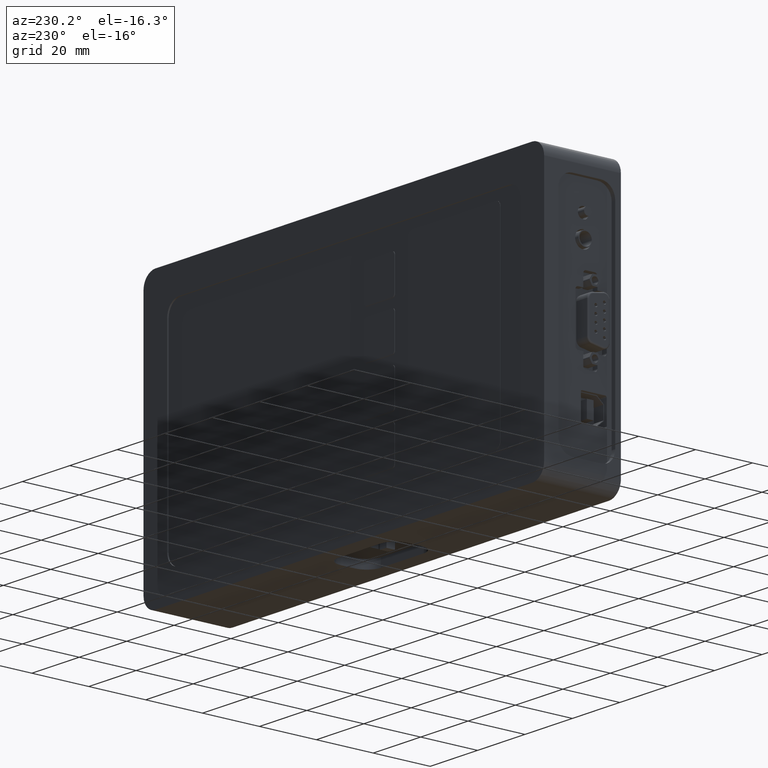
[diagram: clean part render]
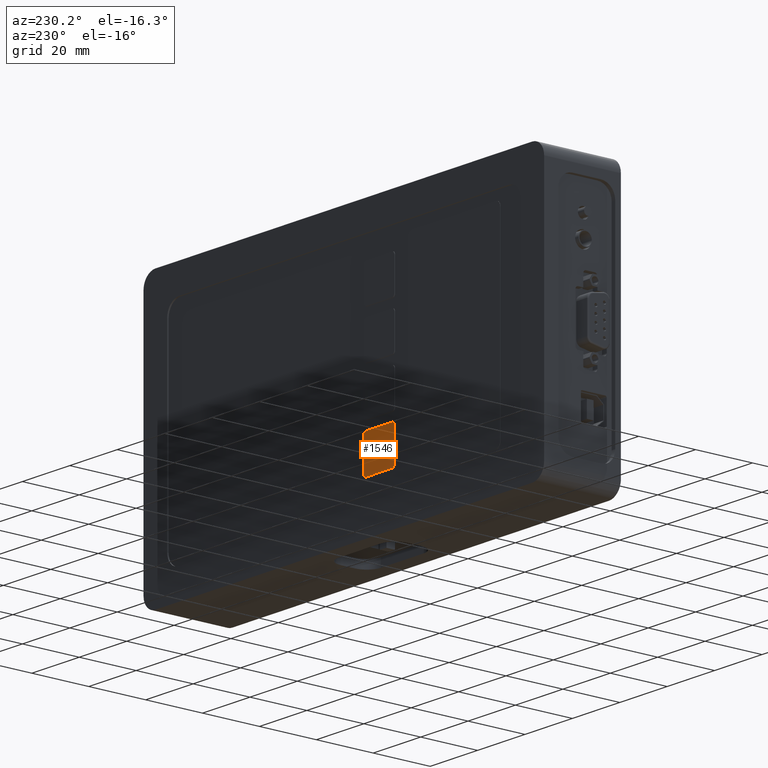
[diagram: same view with one face highlighted and labeled with its STEP entity id]
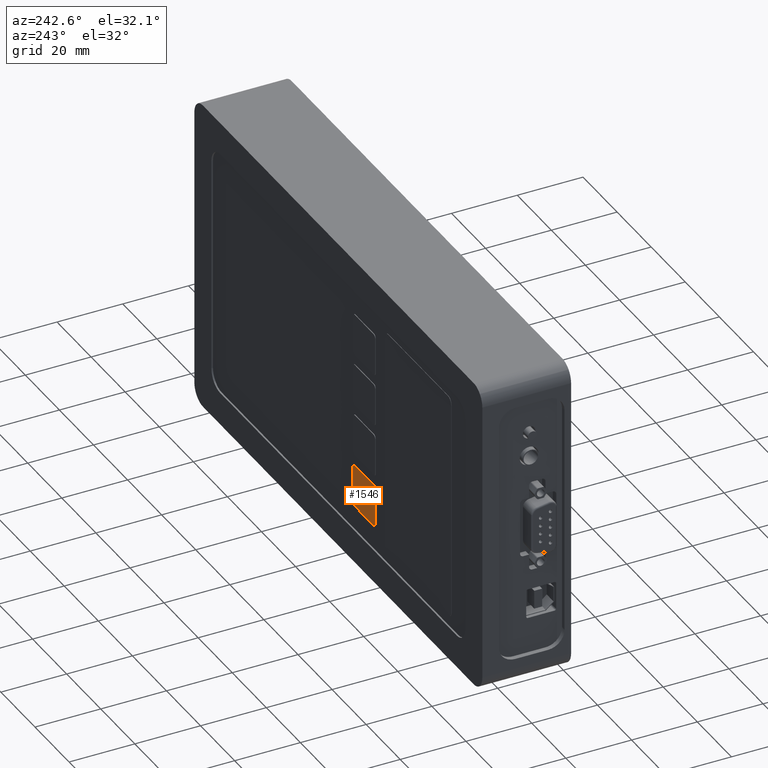
[diagram: same view with one face highlighted and labeled with its STEP entity id]
A machine part, auxiliary view. The second image highlights one B-rep face of the part: STEP entity #1546.
A second angle (auxiliary view) of the same face is appended — the face is thin or edge-on in the first view.
In plain terms, the highlighted planar face has unit normal (-0, 1, 0).
Its self-contained STEP definition (entity closure, byte-faithful):
#100 = CARTESIAN_POINT ( 'NONE',  ( -21.00000000000000000, 26.70000000000000284, -30.50000000000000000 ) ) ;
#313 = DIRECTION ( 'NONE',  ( -0.7071067811865510144, 0.000000000000000000, -0.7071067811865441310 ) ) ;
#353 = CARTESIAN_POINT ( 'NONE',  ( -8.292893218813452094, 26.70000000000000284, -30.20710678118654613 ) ) ;
#452 = CARTESIAN_POINT ( 'NONE',  ( -8.000000000000000000, 26.70000000000000284, -30.50000000000000000 ) ) ;
#554 = VERTEX_POINT ( 'NONE', #8958 ) ;
#558 = ORIENTED_EDGE ( 'NONE', *, *, #6765, .F. ) ;
#610 = CIRCLE ( 'NONE', #6028, 1.000000000000001332 ) ;
#621 = DIRECTION ( 'NONE',  ( 0.000000000000000000, 0.000000000000000000, 1.000000000000000000 ) ) ;
#658 = EDGE_CURVE ( 'NONE', #2136, #5108, #2889, .T. ) ;
#703 = EDGE_CURVE ( 'NONE', #5776, #5108, #4594, .T. ) ;
#757 = CARTESIAN_POINT ( 'NONE',  ( -20.70710678118655323, 26.70000000000000284, -30.20710678118654258 ) ) ;
#1012 = LINE ( 'NONE', #452, #6664 ) ;
#1020 = CARTESIAN_POINT ( 'NONE',  ( -9.000000000000000000, 26.70000000000000284, -30.50000000000000000 ) ) ;
#1027 = DIRECTION ( 'NONE',  ( -0.000000000000000000, 1.000000000000000000, 0.000000000000000000 ) ) ;
#1048 = DIRECTION ( 'NONE',  ( 0.000000000000000000, -1.000000000000000000, 0.000000000000000000 ) ) ;
#1265 = CARTESIAN_POINT ( 'NONE',  ( -8.000000000000000000, 26.70000000000000284, -18.50000000000000000 ) ) ;
#1267 = DIRECTION ( 'NONE',  ( 0.7071067811865467956, 0.000000000000000000, 0.7071067811865484609 ) ) ;
#1301 = VERTEX_POINT ( 'NONE', #1265 ) ;
#1328 = EDGE_CURVE ( 'NONE', #2136, #4245, #3290, .T. ) ;
#1486 = DIRECTION ( 'NONE',  ( -0.7071067811865457964, 0.000000000000000000, 0.7071067811865492381 ) ) ;
#1525 = EDGE_CURVE ( 'NONE', #3520, #8329, #2415, .T. ) ;
#1529 = VECTOR ( 'NONE', #1543, 1000.000000000000000 ) ;
#1530 = AXIS2_PLACEMENT_3D ( 'NONE', #5988, #6675, #4748 ) ;
#1541 = ORIENTED_EDGE ( 'NONE', *, *, #7706, .F. ) ;
#1543 = DIRECTION ( 'NONE',  ( 1.000000000000000000, 0.000000000000000000, -3.416070845000479880E-16 ) ) ;
#1546 = ADVANCED_FACE ( 'NONE', ( #8345 ), #3512, .T. ) ;
#1549 = VERTEX_POINT ( 'NONE', #7295 ) ;
#1636 = DIRECTION ( 'NONE',  ( 0.7071067811865467956, 0.000000000000000000, -0.7071067811865484609 ) ) ;
#1822 = AXIS2_PLACEMENT_3D ( 'NONE', #2183, #7749, #1486 ) ;
#1853 = EDGE_CURVE ( 'NONE', #1301, #3106, #3591, .T. ) ;
#1903 = DIRECTION ( 'NONE',  ( 0.000000000000000000, -1.000000000000000000, 0.000000000000000000 ) ) ;
#1911 = DIRECTION ( 'NONE',  ( -0.7071067811865510144, 0.000000000000000000, -0.7071067811865441310 ) ) ;
#2043 = CARTESIAN_POINT ( 'NONE',  ( -21.00000000000000000, 26.70000000000000284, -17.50000000000000000 ) ) ;
#2062 = DIRECTION ( 'NONE',  ( -1.000000000000000000, 0.000000000000000000, 3.416070845000479880E-16 ) ) ;
#2096 = CARTESIAN_POINT ( 'NONE',  ( -20.00000000000000000, 26.70000000000000284, -18.50000000000000000 ) ) ;
#2114 = CARTESIAN_POINT ( 'NONE',  ( -20.00000000000000000, 26.70000000000000284, -29.50000000000000000 ) ) ;
#2136 = VERTEX_POINT ( 'NONE', #1020 ) ;
#2147 = DIRECTION ( 'NONE',  ( 0.000000000000000000, -1.000000000000000000, 0.000000000000000000 ) ) ;
#2183 = CARTESIAN_POINT ( 'NONE',  ( -20.00000000000000000, 26.70000000000000284, -18.50000000000000000 ) ) ;
#2289 = DIRECTION ( 'NONE',  ( 0.000000000000000000, -1.000000000000000000, 0.000000000000000000 ) ) ;
#2415 = CIRCLE ( 'NONE', #1822, 0.9999999999999988898 ) ;
#2428 = ORIENTED_EDGE ( 'NONE', *, *, #4302, .F. ) ;
#2594 = EDGE_CURVE ( 'NONE', #1549, #554, #3515, .T. ) ;
#2776 = CARTESIAN_POINT ( 'NONE',  ( -9.000000000000000000, 26.70000000000000284, -18.50000000000000000 ) ) ;
#2889 = LINE ( 'NONE', #100, #6198 ) ;
#2924 = CARTESIAN_POINT ( 'NONE',  ( -9.000000000000000000, 26.70000000000000284, -29.50000000000000000 ) ) ;
#2977 = AXIS2_PLACEMENT_3D ( 'NONE', #5472, #4927, #6834 ) ;
#3085 = VERTEX_POINT ( 'NONE', #8388 ) ;
#3106 = VERTEX_POINT ( 'NONE', #4829 ) ;
#3290 = CIRCLE ( 'NONE', #1530, 1.000000000000000000 ) ;
#3512 = PLANE ( 'NONE',  #4176 ) ;
#3515 = LINE ( 'NONE', #6946, #1529 ) ;
#3520 = VERTEX_POINT ( 'NONE', #5828 ) ;
#3591 = CIRCLE ( 'NONE', #2977, 1.000000000000000000 ) ;
#3764 = EDGE_CURVE ( 'NONE', #1301, #8613, #1012, .T. ) ;
#4168 = DIRECTION ( 'NONE',  ( -0.7071067811865457964, 0.000000000000000000, 0.7071067811865492381 ) ) ;
#4176 = AXIS2_PLACEMENT_3D ( 'NONE', #5110, #1027, #4516 ) ;
#4245 = VERTEX_POINT ( 'NONE', #353 ) ;
#4262 = EDGE_CURVE ( 'NONE', #3085, #8329, #7670, .T. ) ;
#4302 = EDGE_CURVE ( 'NONE', #3106, #554, #4348, .T. ) ;
#4348 = CIRCLE ( 'NONE', #6680, 1.000000000000000000 ) ;
#4494 = ORIENTED_EDGE ( 'NONE', *, *, #3764, .T. ) ;
#4513 = ORIENTED_EDGE ( 'NONE', *, *, #1853, .F. ) ;
#4516 = DIRECTION ( 'NONE',  ( 1.000000000000000000, 0.000000000000000000, 0.000000000000000000 ) ) ;
#4594 = CIRCLE ( 'NONE', #6635, 1.000000000000001332 ) ;
#4674 = ORIENTED_EDGE ( 'NONE', *, *, #703, .F. ) ;
#4703 = ORIENTED_EDGE ( 'NONE', *, *, #658, .T. ) ;
#4748 = DIRECTION ( 'NONE',  ( 0.7071067811865467956, 0.000000000000000000, -0.7071067811865484609 ) ) ;
#4829 = CARTESIAN_POINT ( 'NONE',  ( -8.292893218813452094, 26.70000000000000284, -17.79289321881345032 ) ) ;
#4855 = ORIENTED_EDGE ( 'NONE', *, *, #2594, .T. ) ;
#4927 = DIRECTION ( 'NONE',  ( 0.000000000000000000, -1.000000000000000000, 0.000000000000000000 ) ) ;
#5108 = VERTEX_POINT ( 'NONE', #9000 ) ;
#5110 = CARTESIAN_POINT ( 'NONE',  ( -14.50000000000000000, 26.70000000000000284, -24.00000000000000000 ) ) ;
#5252 = EDGE_CURVE ( 'NONE', #4245, #8613, #5871, .T. ) ;
#5273 = CARTESIAN_POINT ( 'NONE',  ( -20.00000000000000000, 26.70000000000000284, -29.50000000000000000 ) ) ;
#5453 = ORIENTED_EDGE ( 'NONE', *, *, #1328, .F. ) ;
#5472 = CARTESIAN_POINT ( 'NONE',  ( -9.000000000000000000, 26.70000000000000284, -18.50000000000000000 ) ) ;
#5743 = AXIS2_PLACEMENT_3D ( 'NONE', #2096, #2147, #4168 ) ;
#5776 = VERTEX_POINT ( 'NONE', #757 ) ;
#5782 = ORIENTED_EDGE ( 'NONE', *, *, #5252, .F. ) ;
#5828 = CARTESIAN_POINT ( 'NONE',  ( -20.70710678118654613, 26.70000000000000284, -17.79289321881345032 ) ) ;
#5871 = CIRCLE ( 'NONE', #8187, 1.000000000000000000 ) ;
#5988 = CARTESIAN_POINT ( 'NONE',  ( -9.000000000000000000, 26.70000000000000284, -29.50000000000000000 ) ) ;
#6028 = AXIS2_PLACEMENT_3D ( 'NONE', #5273, #8096, #1911 ) ;
#6198 = VECTOR ( 'NONE', #2062, 1000.000000000000000 ) ;
#6635 = AXIS2_PLACEMENT_3D ( 'NONE', #2114, #1048, #313 ) ;
#6664 = VECTOR ( 'NONE', #7371, 1000.000000000000000 ) ;
#6675 = DIRECTION ( 'NONE',  ( 0.000000000000000000, -1.000000000000000000, 0.000000000000000000 ) ) ;
#6680 = AXIS2_PLACEMENT_3D ( 'NONE', #2776, #1903, #1267 ) ;
#6765 = EDGE_CURVE ( 'NONE', #1549, #3520, #8503, .T. ) ;
#6834 = DIRECTION ( 'NONE',  ( 0.7071067811865467956, 0.000000000000000000, 0.7071067811865484609 ) ) ;
#6946 = CARTESIAN_POINT ( 'NONE',  ( -8.000000000000000000, 26.70000000000000284, -17.50000000000000000 ) ) ;
#7295 = CARTESIAN_POINT ( 'NONE',  ( -20.00000000000000000, 26.70000000000000284, -17.50000000000000000 ) ) ;
#7371 = DIRECTION ( 'NONE',  ( -4.270088556250600220E-16, 0.000000000000000000, -1.000000000000000000 ) ) ;
#7383 = ORIENTED_EDGE ( 'NONE', *, *, #1525, .F. ) ;
#7464 = CARTESIAN_POINT ( 'NONE',  ( -8.000000000000000000, 26.70000000000000284, -29.50000000000000000 ) ) ;
#7612 = CARTESIAN_POINT ( 'NONE',  ( -21.00000000000000000, 26.70000000000000284, -18.50000000000000000 ) ) ;
#7670 = LINE ( 'NONE', #2043, #8857 ) ;
#7706 = EDGE_CURVE ( 'NONE', #3085, #5776, #610, .T. ) ;
#7707 = ORIENTED_EDGE ( 'NONE', *, *, #4262, .T. ) ;
#7749 = DIRECTION ( 'NONE',  ( 0.000000000000000000, -1.000000000000000000, 0.000000000000000000 ) ) ;
#8096 = DIRECTION ( 'NONE',  ( 0.000000000000000000, -1.000000000000000000, 0.000000000000000000 ) ) ;
#8187 = AXIS2_PLACEMENT_3D ( 'NONE', #2924, #2289, #1636 ) ;
#8329 = VERTEX_POINT ( 'NONE', #7612 ) ;
#8345 = FACE_OUTER_BOUND ( 'NONE', #8642, .T. ) ;
#8388 = CARTESIAN_POINT ( 'NONE',  ( -21.00000000000000000, 26.70000000000000284, -29.50000000000000000 ) ) ;
#8503 = CIRCLE ( 'NONE', #5743, 0.9999999999999988898 ) ;
#8613 = VERTEX_POINT ( 'NONE', #7464 ) ;
#8642 = EDGE_LOOP ( 'NONE', ( #558, #4855, #2428, #4513, #4494, #5782, #5453, #4703, #4674, #1541, #7707, #7383 ) ) ;
#8857 = VECTOR ( 'NONE', #621, 1000.000000000000000 ) ;
#8958 = CARTESIAN_POINT ( 'NONE',  ( -9.000000000000000000, 26.70000000000000284, -17.50000000000000000 ) ) ;
#9000 = CARTESIAN_POINT ( 'NONE',  ( -20.00000000000000000, 26.70000000000000284, -30.50000000000000000 ) ) ;